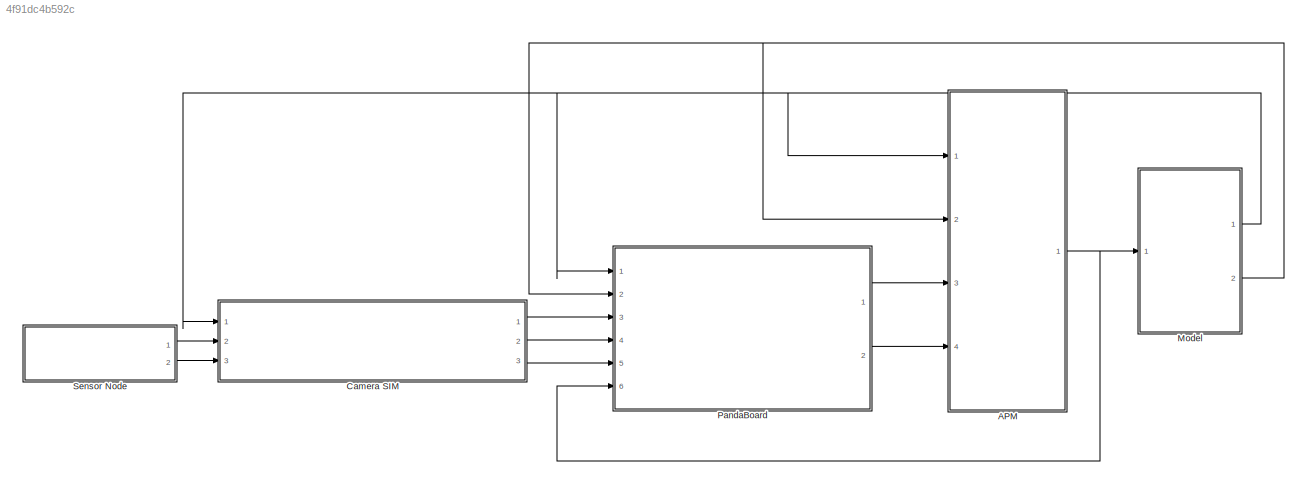
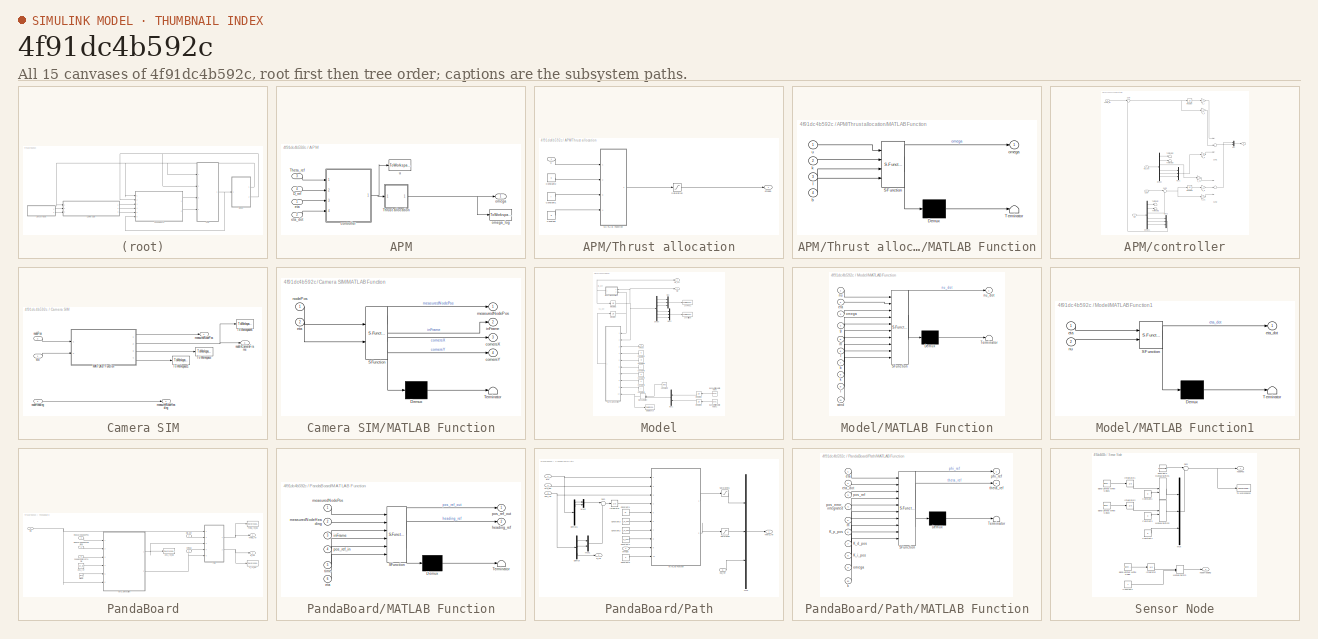
[diagram: thumbnail index - all 15 canvases of the model, root first then tree order]
MODEL slx_4f91dc4b592c
KIND model
BLOCK [SubSystem] APM
  FunctionWithSeparateData = off
  MaskHideContents = off
  MinAlgLoopOccurrences = off
  Opaque = off
  Ports = [4, 1]
  PropExecContextOutsideSubsystem = off
  RTWSystemCode = Auto
  RequestExecContextInheritance = off
BLOCK [Inport] APM/D_ref
  IconDisplay = Port number
  Port = 4
BLOCK [Inport] APM/Theta_ref
  IconDisplay = Port number
  Port = 3
BLOCK [SubSystem] APM/Thrust allocation
  FunctionWithSeparateData = off
  MaskHideContents = off
  MinAlgLoopOccurrences = off
  Opaque = off
  Ports = [1, 1]
  PropExecContextOutsideSubsystem = off
  RTWSystemCode = Auto
  RequestExecContextInheritance = off
BLOCK [Constant] APM/Thrust allocation/Constant
  Value = b
BLOCK [Constant] APM/Thrust allocation/Constant1
  Value = l
BLOCK [Constant] APM/Thrust allocation/Constant2
  Value = k
BLOCK [SubSystem] APM/Thrust allocation/MATLAB Function
  ErrorFcn = Stateflow.Translate.translate
  FunctionWithSeparateData = off
  MaskHideContents = off
  MinAlgLoopOccurrences = off
  Opaque = off
  PermitHierarchicalResolution = ExplicitOnly
  Ports = [4, 1]
  PropExecContextOutsideSubsystem = off
  RTWSystemCode = Auto
  RequestExecContextInheritance = off
  SFBlockType = MATLAB Function
  TreatAsAtomicUnit = on
BLOCK [Demux] APM/Thrust allocation/MATLAB Function/ Demux 
  Outputs = 1
  Ports = [1, 1]
BLOCK [S-Function] APM/Thrust allocation/MATLAB Function/ SFunction 
  EnableBusSupport = on
  FunctionName = sf_sfun
  PortCounts = [4 2]
  Ports = [4, 2]
  Tag = Stateflow S-Function test 1
BLOCK [Terminator] APM/Thrust allocation/MATLAB Function/ Terminator 
BLOCK [Inport] APM/Thrust allocation/MATLAB Function/b
  IconDisplay = Port number
  Port = 4
BLOCK [Inport] APM/Thrust allocation/MATLAB Function/k
  IconDisplay = Port number
  Port = 2
BLOCK [Inport] APM/Thrust allocation/MATLAB Function/l
  IconDisplay = Port number
  Port = 3
BLOCK [Outport] APM/Thrust allocation/MATLAB Function/omega
  IconDisplay = Port number
BLOCK [Inport] APM/Thrust allocation/MATLAB Function/u
  IconDisplay = Port number
BLOCK [Saturate] APM/Thrust allocation/Saturation
  InputPortMap = u0
  LowerLimit = 0
  Ports = [1, 1]
  UpperLimit = Inf
  ZeroCross = off
BLOCK [Outport] APM/Thrust allocation/omega
  IconDisplay = Port number
BLOCK [Inport] APM/Thrust allocation/u
  IconDisplay = Port number
BLOCK [SubSystem] APM/controller
  FunctionWithSeparateData = off
  MaskHideContents = off
  MinAlgLoopOccurrences = off
  Opaque = off
  Ports = [4, 1]
  PropExecContextOutsideSubsystem = off
  RTWSystemCode = Auto
  RequestExecContextInheritance = off
BLOCK [Inport] APM/controller/D_ref
  IconDisplay = Port number
  Port = 2
BLOCK [Demux] APM/controller/Demux
  DisplayOption = bar
  Outputs = 6
  Ports = [1, 6]
BLOCK [Demux] APM/controller/Demux1
  DisplayOption = bar
  Outputs = 6
  Ports = [1, 6]
BLOCK [Integrator] APM/controller/Integrator
  InitialCondition = [0,0,0]'
  Ports = [1, 1]
BLOCK [Integrator] APM/controller/Integrator1
  Ports = [1, 1]
BLOCK [Gain] APM/controller/K_d
  Gain = K_d
  Multiplication = Matrix(K*u)
  OutDataTypeStr = Inherit: Inherit via internal rule
  ParamDataTypeStr = Inherit: Inherit via internal rule
  SaturateOnIntegerOverflow = off
BLOCK [Gain] APM/controller/K_d1
  Gain = k_d
  OutDataTypeStr = Inherit: Inherit via internal rule
  ParamDataTypeStr = Inherit: Inherit via internal rule
  SaturateOnIntegerOverflow = off
BLOCK [Gain] APM/controller/K_i
  Gain = K_i
  Multiplication = Matrix(K*u)
  OutDataTypeStr = Inherit: Inherit via internal rule
  ParamDataTypeStr = Inherit: Inherit via internal rule
  SaturateOnIntegerOverflow = off
BLOCK [Gain] APM/controller/K_i1
  Gain = k_i
  OutDataTypeStr = Inherit: Inherit via internal rule
  ParamDataTypeStr = Inherit: Inherit via internal rule
  SaturateOnIntegerOverflow = off
BLOCK [Gain] APM/controller/K_p
  Gain = K_p
  Multiplication = Matrix(K*u)
  OutDataTypeStr = Inherit: Inherit via internal rule
  ParamDataTypeStr = Inherit: Inherit via internal rule
  SaturateOnIntegerOverflow = off
BLOCK [Gain] APM/controller/K_p1
  Gain = k_p
  OutDataTypeStr = Inherit: Inherit via internal rule
  ParamDataTypeStr = Inherit: Inherit via internal rule
  SaturateOnIntegerOverflow = off
BLOCK [Mux] APM/controller/Mux
  DisplayOption = bar
  Inputs = 2
  Ports = [2, 1]
BLOCK [Mux] APM/controller/Mux1
  DisplayOption = bar
  Inputs = 3
  Ports = [3, 1]
BLOCK [Mux] APM/controller/Mux2
  DisplayOption = bar
  Inputs = 3
  Ports = [3, 1]
BLOCK [Sum] APM/controller/Sum
  IconShape = round
  InputSameDT = off
  Inputs = |+-
  OutDataTypeStr = Inherit: Inherit via internal rule
  Ports = [2, 1]
  SaturateOnIntegerOverflow = off
BLOCK [Sum] APM/controller/Sum1
  InputSameDT = off
  Inputs = +++
  OutDataTypeStr = Inherit: Inherit via internal rule
  Ports = [3, 1]
  SaturateOnIntegerOverflow = off
BLOCK [Sum] APM/controller/Sum2
  InputSameDT = off
  Inputs = ---
  OutDataTypeStr = Inherit: Inherit via internal rule
  Ports = [3, 1]
  SaturateOnIntegerOverflow = off
BLOCK [Sum] APM/controller/Sum3
  IconShape = round
  InputSameDT = off
  Inputs = |+-
  OutDataTypeStr = Inherit: Inherit via internal rule
  Ports = [2, 1]
  SaturateOnIntegerOverflow = off
BLOCK [Terminator] APM/controller/Terminator
BLOCK [Terminator] APM/controller/Terminator1
BLOCK [Terminator] APM/controller/Terminator2
BLOCK [Terminator] APM/controller/Terminator3
BLOCK [Inport] APM/controller/Theta_ref
  IconDisplay = Port number
BLOCK [Inport] APM/controller/eta
  IconDisplay = Port number
  Port = 3
BLOCK [Inport] APM/controller/eta_dot
  IconDisplay = Port number
  Port = 4
BLOCK [Outport] APM/controller/u
  IconDisplay = Port number
BLOCK [Inport] APM/eta
  IconDisplay = Port number
BLOCK [Inport] APM/eta_dot
  IconDisplay = Port number
  Port = 2
BLOCK [Outport] APM/omega
  IconDisplay = Port number
BLOCK [ToWorkspace] APM/omega_log
  MaxDataPoints = inf
  Ports = [1]
  SampleTime = -1
  SaveFormat = Timeseries
  VariableName = omega
BLOCK [ToWorkspace] APM/u
  MaxDataPoints = inf
  Ports = [1]
  SampleTime = -1
  SaveFormat = Timeseries
  VariableName = u
BLOCK [SubSystem] Camera SIM
  FunctionWithSeparateData = off
  MaskHideContents = off
  MinAlgLoopOccurrences = off
  Opaque = off
  Ports = [3, 3]
  PropExecContextOutsideSubsystem = off
  RTWSystemCode = Auto
  RequestExecContextInheritance = off
BLOCK [SubSystem] Camera SIM/MATLAB Function
  ErrorFcn = Stateflow.Translate.translate
  FunctionWithSeparateData = off
  MaskHideContents = off
  MinAlgLoopOccurrences = off
  Opaque = off
  PermitHierarchicalResolution = ExplicitOnly
  Ports = [2, 4]
  PropExecContextOutsideSubsystem = off
  RTWSystemCode = Auto
  RequestExecContextInheritance = off
  SFBlockType = MATLAB Function
  TreatAsAtomicUnit = on
BLOCK [Demux] Camera SIM/MATLAB Function/ Demux 
  Outputs = 1
  Ports = [1, 1]
BLOCK [S-Function] Camera SIM/MATLAB Function/ SFunction 
  EnableBusSupport = on
  FunctionName = sf_sfun
  PortCounts = [2 5]
  Ports = [2, 5]
  Tag = Stateflow S-Function test 5
BLOCK [Terminator] Camera SIM/MATLAB Function/ Terminator 
BLOCK [Outport] Camera SIM/MATLAB Function/cornersX
  IconDisplay = Port number
  Port = 3
BLOCK [Outport] Camera SIM/MATLAB Function/cornersY
  IconDisplay = Port number
  Port = 4
BLOCK [Inport] Camera SIM/MATLAB Function/eta
  IconDisplay = Port number
  Port = 2
BLOCK [Outport] Camera SIM/MATLAB Function/inFrame
  IconDisplay = Port number
  Port = 2
BLOCK [Outport] Camera SIM/MATLAB Function/measuredNodePos
  IconDisplay = Port number
BLOCK [Inport] Camera SIM/MATLAB Function/nodePos
  IconDisplay = Port number
BLOCK [ToWorkspace] Camera SIM/To Workspace
  MaxDataPoints = inf
  Ports = [1]
  SampleTime = -1
  SaveFormat = Timeseries
  VariableName = cornersX
BLOCK [ToWorkspace] Camera SIM/To Workspace1
  MaxDataPoints = inf
  Ports = [1]
  SampleTime = -1
  SaveFormat = Timeseries
  VariableName = cornersY
BLOCK [ToWorkspace] Camera SIM/To Workspace6
  MaxDataPoints = inf
  Ports = [1]
  SampleTime = -1
  SaveFormat = Timeseries
  VariableName = inframe
BLOCK [Inport] Camera SIM/eta
  IconDisplay = Port number
BLOCK [Outport] Camera SIM/measuredNodeHeading
  IconDisplay = Port number
  Port = 2
BLOCK [Outport] Camera SIM/measuredNodePos
  IconDisplay = Port number
BLOCK [Inport] Camera SIM/nodeHeading
  IconDisplay = Port number
  Port = 3
BLOCK [Outport] Camera SIM/nodeInCameraFrame
  IconDisplay = Port number
  Port = 3
BLOCK [Inport] Camera SIM/nodePos
  IconDisplay = Port number
  Port = 2
BLOCK [SubSystem] Model
  FunctionWithSeparateData = off
  MaskHideContents = off
  MinAlgLoopOccurrences = off
  Opaque = off
  Ports = [1, 2]
  PropExecContextOutsideSubsystem = off
  RTWSystemCode = Auto
  RequestExecContextInheritance = off
BLOCK [Reference] Model/Band-Limited White Noise  REF=simulink/Sources/Band-Limited
White Noise
  Cov = [0.1]
  Ports = [0, 1]
  SourceBlock = simulink/Sources/Band-Limited\nWhite Noise
  SourceType = Band-Limited White Noise.
  Ts = 0.1
  VectorParams1D = on
  seed = [23341]
BLOCK [Reference] Model/Band-Limited White Noise1  REF=simulink/Sources/Band-Limited
White Noise
  Cov = [0.1]
  Ports = [0, 1]
  SourceBlock = simulink/Sources/Band-Limited\nWhite Noise
  SourceType = Band-Limited White Noise.
  Ts = 0.1
  VectorParams1D = on
  seed = [22341]
BLOCK [Constant] Model/Constant1
  Value = g
BLOCK [Constant] Model/Constant2
  Value = m
BLOCK [Constant] Model/Constant3
  Value = I
BLOCK [Constant] Model/Constant4
  Value = b
BLOCK [Constant] Model/Constant5
  Value = k
BLOCK [Constant] Model/Constant6
  Value = l
BLOCK [Constant] Model/Constant7
  Value = wind
BLOCK [Demux] Model/Demux
  DisplayOption = bar
  Outputs = 6
  Ports = [1, 6]
BLOCK [Integrator] Model/Integrator
  InitialCondition = nu_0
  Ports = [1, 1]
BLOCK [Integrator] Model/Integrator1
  InitialCondition = eta_0
  Ports = [1, 1]
BLOCK [Integrator] Model/Integrator2
  LimitOutput = on
  LowerSaturationLimit = -1
  Ports = [1, 1]
  UpperSaturationLimit = 1
BLOCK [Integrator] Model/Integrator3
  LimitOutput = on
  LowerSaturationLimit = -1
  Ports = [1, 1]
  UpperSaturationLimit = 1
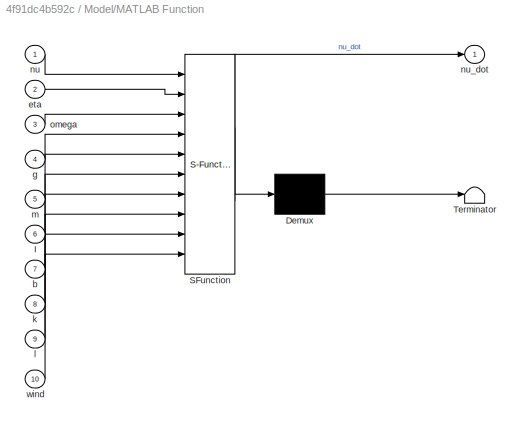
BLOCK [SubSystem] Model/MATLAB Function
  ErrorFcn = Stateflow.Translate.translate
  FunctionWithSeparateData = off
  MaskHideContents = off
  MinAlgLoopOccurrences = off
  Opaque = off
  PermitHierarchicalResolution = ExplicitOnly
  Ports = [10, 1]
  PropExecContextOutsideSubsystem = off
  RTWSystemCode = Auto
  RequestExecContextInheritance = off
  SFBlockType = MATLAB Function
  TreatAsAtomicUnit = on
BLOCK [Demux] Model/MATLAB Function/ Demux 
  Outputs = 1
  Ports = [1, 1]
BLOCK [S-Function] Model/MATLAB Function/ SFunction 
  EnableBusSupport = on
  FunctionName = sf_sfun
  PortCounts = [10 2]
  Ports = [10, 2]
  Tag = Stateflow S-Function test 2
BLOCK [Terminator] Model/MATLAB Function/ Terminator 
BLOCK [Inport] Model/MATLAB Function/I
  IconDisplay = Port number
  Port = 6
BLOCK [Inport] Model/MATLAB Function/b
  IconDisplay = Port number
  Port = 7
BLOCK [Inport] Model/MATLAB Function/eta
  IconDisplay = Port number
  Port = 2
BLOCK [Inport] Model/MATLAB Function/g
  IconDisplay = Port number
  Port = 4
BLOCK [Inport] Model/MATLAB Function/k
  IconDisplay = Port number
  Port = 8
BLOCK [Inport] Model/MATLAB Function/l
  IconDisplay = Port number
  Port = 9
BLOCK [Inport] Model/MATLAB Function/m
  IconDisplay = Port number
  Port = 5
BLOCK [Inport] Model/MATLAB Function/nu
  IconDisplay = Port number
BLOCK [Outport] Model/MATLAB Function/nu_dot
  IconDisplay = Port number
BLOCK [Inport] Model/MATLAB Function/omega
  IconDisplay = Port number
  Port = 3
BLOCK [Inport] Model/MATLAB Function/wind
  IconDisplay = Port number
  Port = 10
BLOCK [SubSystem] Model/MATLAB Function1
  ErrorFcn = Stateflow.Translate.translate
  FunctionWithSeparateData = off
  MaskHideContents = off
  MinAlgLoopOccurrences = off
  Opaque = off
  PermitHierarchicalResolution = ExplicitOnly
  Ports = [2, 1]
  PropExecContextOutsideSubsystem = off
  RTWSystemCode = Auto
  RequestExecContextInheritance = off
  SFBlockType = MATLAB Function
  TreatAsAtomicUnit = on
BLOCK [Demux] Model/MATLAB Function1/ Demux 
  Outputs = 1
  Ports = [1, 1]
BLOCK [S-Function] Model/MATLAB Function1/ SFunction 
  EnableBusSupport = on
  FunctionName = sf_sfun
  PortCounts = [2 2]
  Ports = [2, 2]
  Tag = Stateflow S-Function test 3
BLOCK [Terminator] Model/MATLAB Function1/ Terminator 
BLOCK [Inport] Model/MATLAB Function1/eta
  IconDisplay = Port number
BLOCK [Outport] Model/MATLAB Function1/eta_dot
  IconDisplay = Port number
BLOCK [Inport] Model/MATLAB Function1/nu
  IconDisplay = Port number
  Port = 2
BLOCK [ManualSwitch] Model/Manual Switch
  CurrentSetting = 0
BLOCK [Mux] Model/Mux
  DisplayOption = bar
  Inputs = 3
  Ports = [3, 1]
BLOCK [Mux] Model/Mux1
  DisplayOption = bar
  Inputs = 2
  Ports = [2, 1]
BLOCK [Mux] Model/Mux2
  DisplayOption = bar
  Inputs = 3
  Ports = [3, 1]
BLOCK [ToWorkspace] Model/UAVAttitude
  MaxDataPoints = inf
  Ports = [1]
  SampleTime = -1
  SaveFormat = Timeseries
  VariableName = UAVAttitude
BLOCK [ToWorkspace] Model/UAVPos1
  MaxDataPoints = inf
  Ports = [1]
  SampleTime = -1
  SaveFormat = Timeseries
  VariableName = UAVPos
BLOCK [ToWorkspace] Model/disturbance
  MaxDataPoints = inf
  Ports = [1]
  SampleTime = -1
  SaveFormat = Timeseries
  VariableName = disturbance
BLOCK [Outport] Model/eta
  IconDisplay = Port number
BLOCK [Outport] Model/eta_dot
  IconDisplay = Port number
  Port = 2
BLOCK [Inport] Model/omega
  IconDisplay = Port number
BLOCK [SubSystem] PandaBoard
  FunctionWithSeparateData = off
  MaskHideContents = off
  MinAlgLoopOccurrences = off
  Opaque = off
  Ports = [6, 2]
  PropExecContextOutsideSubsystem = off
  RTWSystemCode = Auto
  RequestExecContextInheritance = off
BLOCK [Clock] PandaBoard/Clock
BLOCK [Outport] PandaBoard/D_ref
  IconDisplay = Port number
  Port = 2
BLOCK [ToWorkspace] PandaBoard/D_ref_log
  MaxDataPoints = inf
  Ports = [1]
  SampleTime = -1
  SaveFormat = Timeseries
  VariableName = D_ref
BLOCK [SubSystem] PandaBoard/MATLAB Function
  ErrorFcn = Stateflow.Translate.translate
  FunctionWithSeparateData = off
  MaskHideContents = off
  MinAlgLoopOccurrences = off
  Opaque = off
  PermitHierarchicalResolution = ExplicitOnly
  Ports = [6, 2]
  PropExecContextOutsideSubsystem = off
  RTWSystemCode = Auto
  RequestExecContextInheritance = off
  SFBlockType = MATLAB Function
  TreatAsAtomicUnit = on
BLOCK [Demux] PandaBoard/MATLAB Function/ Demux 
  Outputs = 1
  Ports = [1, 1]
BLOCK [S-Function] PandaBoard/MATLAB Function/ SFunction 
  EnableBusSupport = on
  FunctionName = sf_sfun
  PortCounts = [6 3]
  Ports = [6, 3]
  Tag = Stateflow S-Function test 6
BLOCK [Terminator] PandaBoard/MATLAB Function/ Terminator 
BLOCK [Inport] PandaBoard/MATLAB Function/eta
  IconDisplay = Port number
  Port = 6
BLOCK [Outport] PandaBoard/MATLAB Function/heading_ref
  IconDisplay = Port number
  Port = 2
BLOCK [Inport] PandaBoard/MATLAB Function/inFrame
  IconDisplay = Port number
  Port = 3
BLOCK [Inport] PandaBoard/MATLAB Function/measuredNodeHeading
  IconDisplay = Port number
  Port = 2
BLOCK [Inport] PandaBoard/MATLAB Function/measuredNodePos
  IconDisplay = Port number
BLOCK [Inport] PandaBoard/MATLAB Function/pos_ref_in
  IconDisplay = Port number
  Port = 4
BLOCK [Outport] PandaBoard/MATLAB Function/pos_ref_out
  IconDisplay = Port number
BLOCK [Inport] PandaBoard/MATLAB Function/time
  IconDisplay = Port number
  Port = 5
BLOCK [SubSystem] PandaBoard/Path
  FunctionWithSeparateData = off
  MaskHideContents = off
  MinAlgLoopOccurrences = off
  Opaque = off
  Ports = [5, 2]
  PropExecContextOutsideSubsystem = off
  RTWSystemCode = Auto
  RequestExecContextInheritance = off
BLOCK [Constant] PandaBoard/Path/Constant1
  Value = m
BLOCK [Constant] PandaBoard/Path/Constant2
  Value = K_d_pos
BLOCK [Constant] PandaBoard/Path/Constant3
  Value = K_p_pos
BLOCK [Constant] PandaBoard/Path/Constant4
  Value = K_i_pos
BLOCK [Constant] PandaBoard/Path/Constant5
  Value = k
BLOCK [Outport] PandaBoard/Path/D_ref
  IconDisplay = Port number
  Port = 2
BLOCK [Demux] PandaBoard/Path/Demux
  DisplayOption = bar
  Outputs = 3
  Ports = [1, 3]
BLOCK [Demux] PandaBoard/Path/Demux1
  DisplayOption = bar
  Outputs = 6
  Ports = [1, 6]
BLOCK [Integrator] PandaBoard/Path/Integrator
  LimitOutput = on
  LowerSaturationLimit = -100
  Ports = [1, 1]
  UpperSaturationLimit = 100
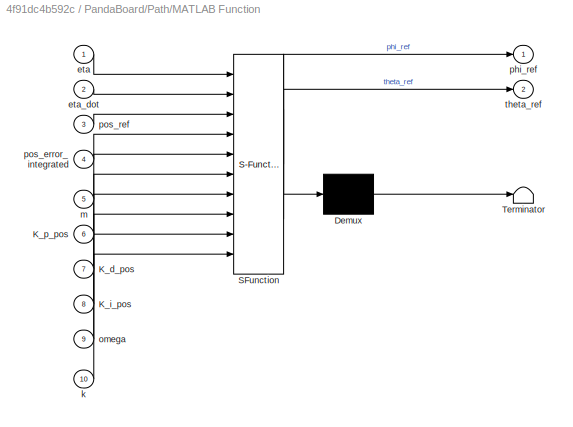
BLOCK [SubSystem] PandaBoard/Path/MATLAB Function
  ErrorFcn = Stateflow.Translate.translate
  FunctionWithSeparateData = off
  MaskHideContents = off
  MinAlgLoopOccurrences = off
  Opaque = off
  PermitHierarchicalResolution = ExplicitOnly
  Ports = [10, 2]
  PropExecContextOutsideSubsystem = off
  RTWSystemCode = Auto
  RequestExecContextInheritance = off
  SFBlockType = MATLAB Function
  TreatAsAtomicUnit = on
BLOCK [Demux] PandaBoard/Path/MATLAB Function/ Demux 
  Outputs = 1
  Ports = [1, 1]
BLOCK [S-Function] PandaBoard/Path/MATLAB Function/ SFunction 
  EnableBusSupport = on
  FunctionName = sf_sfun
  PortCounts = [10 3]
  Ports = [10, 3]
  Tag = Stateflow S-Function test 4
BLOCK [Terminator] PandaBoard/Path/MATLAB Function/ Terminator 
BLOCK [Inport] PandaBoard/Path/MATLAB Function/K_d_pos
  IconDisplay = Port number
  Port = 7
BLOCK [Inport] PandaBoard/Path/MATLAB Function/K_i_pos
  IconDisplay = Port number
  Port = 8
BLOCK [Inport] PandaBoard/Path/MATLAB Function/K_p_pos
  IconDisplay = Port number
  Port = 6
BLOCK [Inport] PandaBoard/Path/MATLAB Function/eta
  IconDisplay = Port number
BLOCK [Inport] PandaBoard/Path/MATLAB Function/eta_dot
  IconDisplay = Port number
  Port = 2
BLOCK [Inport] PandaBoard/Path/MATLAB Function/k
  IconDisplay = Port number
  Port = 10
BLOCK [Inport] PandaBoard/Path/MATLAB Function/m
  IconDisplay = Port number
  Port = 5
BLOCK [Inport] PandaBoard/Path/MATLAB Function/omega
  IconDisplay = Port number
  Port = 9
BLOCK [Outport] PandaBoard/Path/MATLAB Function/phi_ref
  IconDisplay = Port number
BLOCK [Inport] PandaBoard/Path/MATLAB Function/pos_error_integrated
  IconDisplay = Port number
  Port = 4
BLOCK [Inport] PandaBoard/Path/MATLAB Function/pos_ref
  IconDisplay = Port number
  Port = 3
BLOCK [Outport] PandaBoard/Path/MATLAB Function/theta_ref
  IconDisplay = Port number
  Port = 2
BLOCK [Mux] PandaBoard/Path/Mux
  DisplayOption = bar
  Inputs = 3
  Ports = [3, 1]
BLOCK [Mux] PandaBoard/Path/Mux1
  DisplayOption = bar
  Inputs = 2
  Ports = [2, 1]
BLOCK [Mux] PandaBoard/Path/Mux2
  DisplayOption = bar
  Inputs = 2
  Ports = [2, 1]
BLOCK [Saturate] PandaBoard/Path/Saturation
  InputPortMap = u0
  LowerLimit = -0.2
  Ports = [1, 1]
  UpperLimit = 0.2
  ZeroCross = off
BLOCK [Saturate] PandaBoard/Path/Saturation1
  InputPortMap = u0
  LowerLimit = -0.2
  Ports = [1, 1]
  UpperLimit = 0.2
  ZeroCross = off
BLOCK [Sum] PandaBoard/Path/Sum
  IconShape = round
  InputSameDT = off
  Inputs = |-+
  OutDataTypeStr = Inherit: Inherit via internal rule
  Ports = [2, 1]
  SaturateOnIntegerOverflow = off
BLOCK [Outport] PandaBoard/Path/Theta_ref
  IconDisplay = Port number
BLOCK [Inport] PandaBoard/Path/eta
  IconDisplay = Port number
BLOCK [Inport] PandaBoard/Path/eta_dot
  IconDisplay = Port number
  Port = 2
BLOCK [Inport] PandaBoard/Path/omega
  IconDisplay = Port number
  Port = 4
BLOCK [Inport] PandaBoard/Path/pos_ref
  IconDisplay = Port number
  Port = 3
BLOCK [Inport] PandaBoard/Path/psi_ref
  IconDisplay = Port number
  Port = 5
BLOCK [Outport] PandaBoard/Theta_ref
  IconDisplay = Port number
BLOCK [ToWorkspace] PandaBoard/Theta_ref_log
  MaxDataPoints = inf
  Ports = [1]
  SampleTime = -1
  SaveFormat = Timeseries
  VariableName = Theta_ref
BLOCK [Inport] PandaBoard/eta
  IconDisplay = Port number
BLOCK [Inport] PandaBoard/eta_dot
  IconDisplay = Port number
  Port = 2
BLOCK [Inport] PandaBoard/measuredNodeHeading
  IconDisplay = Port number
  Port = 4
BLOCK [Inport] PandaBoard/measuredNodePos
  IconDisplay = Port number
  Port = 3
BLOCK [Inport] PandaBoard/nodeInCameraFrame
  IconDisplay = Port number
  Port = 5
BLOCK [Inport] PandaBoard/omega
  IconDisplay = Port number
  Port = 6
BLOCK [Constant] PandaBoard/pos_ref
  Value = pos_ref
BLOCK [ToWorkspace] PandaBoard/pos_ref_log
  MaxDataPoints = inf
  Ports = [1]
  SampleTime = -1
  SaveFormat = Timeseries
  VariableName = pos_ref
BLOCK [SubSystem] Sensor Node
  FunctionWithSeparateData = off
  MaskHideContents = off
  MinAlgLoopOccurrences = off
  Opaque = off
  Ports = [0, 2]
  PropExecContextOutsideSubsystem = off
  RTWSystemCode = Auto
  RequestExecContextInheritance = off
BLOCK [Reference] Sensor Node/Band-Limited White Noise  REF=simulink/Sources/Band-Limited
White Noise
  Cov = [0.1]
  Ports = [0, 1]
  SourceBlock = simulink/Sources/Band-Limited\nWhite Noise
  SourceType = Band-Limited White Noise.
  Ts = 0.1
  VectorParams1D = on
  seed = [23341]
BLOCK [Reference] Sensor Node/Band-Limited White Noise1  REF=simulink/Sources/Band-Limited
White Noise
  Cov = [0.01]
  Ports = [0, 1]
  SourceBlock = simulink/Sources/Band-Limited\nWhite Noise
  SourceType = Band-Limited White Noise.
  Ts = 0.1
  VectorParams1D = on
  seed = [23341]
BLOCK [Reference] Sensor Node/Band-Limited White Noise2  REF=simulink/Sources/Band-Limited
White Noise
  Cov = [0.01]
  Ports = [0, 1]
  SourceBlock = simulink/Sources/Band-Limited\nWhite Noise
  SourceType = Band-Limited White Noise.
  Ts = 0.1
  VectorParams1D = on
  seed = [23341]
BLOCK [Constant] Sensor Node/Constant1
  Value = 0
BLOCK [Constant] Sensor Node/Constant2
BLOCK [Constant] Sensor Node/Constant3
  Value = 0
BLOCK [Constant] Sensor Node/Constant4
  Value = 0
BLOCK [Integrator] Sensor Node/Integrator
  Ports = [1, 1]
BLOCK [Integrator] Sensor Node/Integrator1
  LimitOutput = on
  LowerSaturationLimit = -1
  Ports = [1, 1]
  UpperSaturationLimit = 1
BLOCK [Integrator] Sensor Node/Integrator2
  LimitOutput = on
  LowerSaturationLimit = -1
  Ports = [1, 1]
  UpperSaturationLimit = 1
BLOCK [ManualSwitch] Sensor Node/Manual Switch
  CurrentSetting = 0
BLOCK [ManualSwitch] Sensor Node/Manual Switch1
  CurrentSetting = 0
BLOCK [ManualSwitch] Sensor Node/Manual Switch2
  CurrentSetting = 0
BLOCK [Mux] Sensor Node/Mux
  DisplayOption = bar
  Inputs = 3
  Ports = [3, 1]
BLOCK [Sum] Sensor Node/Sum
  IconShape = round
  InputSameDT = off
  Inputs = |++
  OutDataTypeStr = Inherit: Inherit via internal rule
  Ports = [2, 1]
  SaturateOnIntegerOverflow = off
BLOCK [ToWorkspace] Sensor Node/To Workspace2
  MaxDataPoints = inf
  Ports = [1]
  SampleTime = -1
  SaveFormat = Timeseries
  VariableName = nodePos
BLOCK [Outport] Sensor Node/nodeHeading
  IconDisplay = Port number
  Port = 2
BLOCK [Outport] Sensor Node/nodePos
  IconDisplay = Port number
BLOCK [Constant] Sensor Node/posNED0
  Value = nodePosition
ANNOTATION Model: eta_dot
ANNOTATION Model: nu_dot
LINE APM/D_ref:1 -> APM/controller:2
LINE APM/Theta_ref:1 -> APM/controller:1
LINE APM/Thrust allocation/Constant1:1 -> APM/Thrust allocation/MATLAB Function:3
LINE APM/Thrust allocation/Constant2:1 -> APM/Thrust allocation/MATLAB Function:2
LINE APM/Thrust allocation/Constant:1 -> APM/Thrust allocation/MATLAB Function:4
LINE APM/Thrust allocation/MATLAB Function:1 -> APM/Thrust allocation/Saturation:1
LINE APM/Thrust allocation/Saturation:1 -> APM/Thrust allocation/omega:1
LINE APM/Thrust allocation/u:1 -> APM/Thrust allocation/MATLAB Function:1
NET APM/Thrust allocation:1 -> APM/omega:1, APM/omega_log:1
LINE APM/controller/D_ref:1 -> APM/controller/Sum3:1
LINE APM/controller/Demux1:1 -> APM/controller/Terminator:1
LINE APM/controller/Demux1:2 -> APM/controller/Terminator1:1
LINE APM/controller/Demux1:3 -> APM/controller/Sum3:2
LINE APM/controller/Demux1:4 -> APM/controller/Mux2:1
LINE APM/controller/Demux1:5 -> APM/controller/Mux2:2
LINE APM/controller/Demux1:6 -> APM/controller/Mux2:3
LINE APM/controller/Demux:1 -> APM/controller/Terminator2:1
LINE APM/controller/Demux:2 -> APM/controller/Terminator3:1
LINE APM/controller/Demux:3 -> APM/controller/K_d1:1
LINE APM/controller/Demux:4 -> APM/controller/Mux1:1
LINE APM/controller/Demux:5 -> APM/controller/Mux1:2
LINE APM/controller/Demux:6 -> APM/controller/Mux1:3
LINE APM/controller/Integrator1:1 -> APM/controller/K_i1:1
LINE APM/controller/Integrator:1 -> APM/controller/K_i:1
LINE APM/controller/K_d1:1 -> APM/controller/Sum2:1
LINE APM/controller/K_d:1 -> APM/controller/Sum1:3
LINE APM/controller/K_i1:1 -> APM/controller/Sum2:2
LINE APM/controller/K_i:1 -> APM/controller/Sum1:1
LINE APM/controller/K_p1:1 -> APM/controller/Sum2:3
LINE APM/controller/K_p:1 -> APM/controller/Sum1:2
LINE APM/controller/Mux1:1 -> APM/controller/K_d:1
LINE APM/controller/Mux2:1 -> APM/controller/Sum:2
LINE APM/controller/Mux:1 -> APM/controller/u:1
LINE APM/controller/Sum1:1 -> APM/controller/Mux:2
LINE APM/controller/Sum2:1 -> APM/controller/Mux:1
NET APM/controller/Sum3:1 -> APM/controller/Integrator1:1, APM/controller/K_p1:1
NET APM/controller/Sum:1 -> APM/controller/Integrator:1, APM/controller/K_p:1
LINE APM/controller/Theta_ref:1 -> APM/controller/Sum:1
LINE APM/controller/eta:1 -> APM/controller/Demux1:1
LINE APM/controller/eta_dot:1 -> APM/controller/Demux:1
NET APM/controller:1 -> APM/Thrust allocation:1, APM/u:1
LINE APM/eta:1 -> APM/controller:3
LINE APM/eta_dot:1 -> APM/controller:4
NET APM:1 -> Model:1, PandaBoard:6
LINE Camera SIM/MATLAB Function:1 -> Camera SIM/measuredNodePos:1
NET Camera SIM/MATLAB Function:2 -> Camera SIM/To Workspace6:1, Camera SIM/nodeInCameraFrame:1
LINE Camera SIM/MATLAB Function:3 -> Camera SIM/To Workspace:1
LINE Camera SIM/MATLAB Function:4 -> Camera SIM/To Workspace1:1
LINE Camera SIM/eta:1 -> Camera SIM/MATLAB Function:2
LINE Camera SIM/nodeHeading:1 -> Camera SIM/measuredNodeHeading:1
LINE Camera SIM/nodePos:1 -> Camera SIM/MATLAB Function:1
LINE Camera SIM:1 -> PandaBoard:3
LINE Camera SIM:2 -> PandaBoard:4
LINE Camera SIM:3 -> PandaBoard:5
LINE Model/Band-Limited White Noise1:1 -> Model/Integrator3:1
LINE Model/Band-Limited White Noise:1 -> Model/Integrator2:1
LINE Model/Constant1:1 -> Model/MATLAB Function:4
LINE Model/Constant2:1 -> Model/MATLAB Function:5
LINE Model/Constant3:1 -> Model/MATLAB Function:6
LINE Model/Constant4:1 -> Model/MATLAB Function:7
LINE Model/Constant5:1 -> Model/MATLAB Function:8
LINE Model/Constant6:1 -> Model/MATLAB Function:9
LINE Model/Constant7:1 -> Model/Manual Switch:1
LINE Model/Demux:1 -> Model/Mux:1
LINE Model/Demux:2 -> Model/Mux:2
LINE Model/Demux:3 -> Model/Mux:3
LINE Model/Demux:4 -> Model/Mux2:1
LINE Model/Demux:5 -> Model/Mux2:2
LINE Model/Demux:6 -> Model/Mux2:3
NET Model/Integrator1:1 -> Model/Demux:1, Model/MATLAB Function1:1, Model/MATLAB Function:2, Model/eta:1
LINE Model/Integrator2:1 -> Model/Mux1:1
LINE Model/Integrator3:1 -> Model/Mux1:2
NET Model/Integrator:1 -> Model/MATLAB Function1:2, Model/MATLAB Function:1
NET Model/MATLAB Function1:1 -> Model/Integrator1:1, Model/eta_dot:1
LINE Model/MATLAB Function:1 -> Model/Integrator:1
NET Model/Manual Switch:1 -> Model/MATLAB Function:10, Model/disturbance:1
LINE Model/Mux1:1 -> Model/Manual Switch:2
LINE Model/Mux2:1 -> Model/UAVAttitude:1
LINE Model/Mux:1 -> Model/UAVPos1:1
LINE Model/omega:1 -> Model/MATLAB Function:3
NET Model:1 -> APM:1, Camera SIM:1, PandaBoard:1
NET Model:2 -> APM:2, PandaBoard:2
LINE PandaBoard/Clock:1 -> PandaBoard/MATLAB Function:5
NET PandaBoard/MATLAB Function:1 -> PandaBoard/Path:3, PandaBoard/pos_ref_log:1
LINE PandaBoard/MATLAB Function:2 -> PandaBoard/Path:5
LINE PandaBoard/Path/Constant1:1 -> PandaBoard/Path/MATLAB Function:5
LINE PandaBoard/Path/Constant2:1 -> PandaBoard/Path/MATLAB Function:7
LINE PandaBoard/Path/Constant3:1 -> PandaBoard/Path/MATLAB Function:6
LINE PandaBoard/Path/Constant4:1 -> PandaBoard/Path/MATLAB Function:8
LINE PandaBoard/Path/Constant5:1 -> PandaBoard/Path/MATLAB Function:10
LINE PandaBoard/Path/Demux1:1 -> PandaBoard/Path/Mux2:1
LINE PandaBoard/Path/Demux1:2 -> PandaBoard/Path/Mux2:2
LINE PandaBoard/Path/Demux:1 -> PandaBoard/Path/Mux1:1
LINE PandaBoard/Path/Demux:2 -> PandaBoard/Path/Mux1:2
LINE PandaBoard/Path/Demux:3 -> PandaBoard/Path/D_ref:1
LINE PandaBoard/Path/Integrator:1 -> PandaBoard/Path/MATLAB Function:4
LINE PandaBoard/Path/MATLAB Function:1 -> PandaBoard/Path/Saturation1:1
LINE PandaBoard/Path/MATLAB Function:2 -> PandaBoard/Path/Saturation:1
LINE PandaBoard/Path/Mux1:1 -> PandaBoard/Path/Sum:2
LINE PandaBoard/Path/Mux2:1 -> PandaBoard/Path/Sum:1
LINE PandaBoard/Path/Mux:1 -> PandaBoard/Path/Theta_ref:1
LINE PandaBoard/Path/Saturation1:1 -> PandaBoard/Path/Mux:1
LINE PandaBoard/Path/Saturation:1 -> PandaBoard/Path/Mux:2
LINE PandaBoard/Path/Sum:1 -> PandaBoard/Path/Integrator:1
NET PandaBoard/Path/eta:1 -> PandaBoard/Path/Demux1:1, PandaBoard/Path/MATLAB Function:1
LINE PandaBoard/Path/eta_dot:1 -> PandaBoard/Path/MATLAB Function:2
LINE PandaBoard/Path/omega:1 -> PandaBoard/Path/MATLAB Function:9
NET PandaBoard/Path/pos_ref:1 -> PandaBoard/Path/Demux:1, PandaBoard/Path/MATLAB Function:3
LINE PandaBoard/Path/psi_ref:1 -> PandaBoard/Path/Mux:3
NET PandaBoard/Path:1 -> PandaBoard/Theta_ref:1, PandaBoard/Theta_ref_log:1
NET PandaBoard/Path:2 -> PandaBoard/D_ref:1, PandaBoard/D_ref_log:1
NET PandaBoard/eta:1 -> PandaBoard/MATLAB Function:6, PandaBoard/Path:1
LINE PandaBoard/eta_dot:1 -> PandaBoard/Path:2
LINE PandaBoard/measuredNodeHeading:1 -> PandaBoard/MATLAB Function:2
LINE PandaBoard/measuredNodePos:1 -> PandaBoard/MATLAB Function:1
LINE PandaBoard/nodeInCameraFrame:1 -> PandaBoard/MATLAB Function:3
LINE PandaBoard/omega:1 -> PandaBoard/Path:4
LINE PandaBoard/pos_ref:1 -> PandaBoard/MATLAB Function:4
LINE PandaBoard:1 -> APM:3
LINE PandaBoard:2 -> APM:4
LINE Sensor Node/Band-Limited White Noise1:1 -> Sensor Node/Integrator1:1
LINE Sensor Node/Band-Limited White Noise2:1 -> Sensor Node/Integrator2:1
LINE Sensor Node/Band-Limited White Noise:1 -> Sensor Node/Integrator:1
LINE Sensor Node/Constant1:1 -> Sensor Node/Manual Switch1:2
LINE Sensor Node/Constant2:1 -> Sensor Node/Manual Switch:2
LINE Sensor Node/Constant3:1 -> Sensor Node/Manual Switch2:2
LINE Sensor Node/Constant4:1 -> Sensor Node/Mux:3
LINE Sensor Node/Integrator1:1 -> Sensor Node/Manual Switch1:1
LINE Sensor Node/Integrator2:1 -> Sensor Node/Manual Switch2:1
LINE Sensor Node/Integrator:1 -> Sensor Node/Manual Switch:1
LINE Sensor Node/Manual Switch1:1 -> Sensor Node/Mux:1
LINE Sensor Node/Manual Switch2:1 -> Sensor Node/Mux:2
LINE Sensor Node/Manual Switch:1 -> Sensor Node/nodeHeading:1
LINE Sensor Node/Mux:1 -> Sensor Node/Sum:2
NET Sensor Node/Sum:1 -> Sensor Node/To Workspace2:1, Sensor Node/nodePos:1
LINE Sensor Node/posNED0:1 -> Sensor Node/Sum:1
LINE Sensor Node:1 -> Camera SIM:2
LINE Sensor Node:2 -> Camera SIM:3
note: NET lines group one-source signal fan-out (src -> all destinations, sorted); 1:1 wires keep LINE
